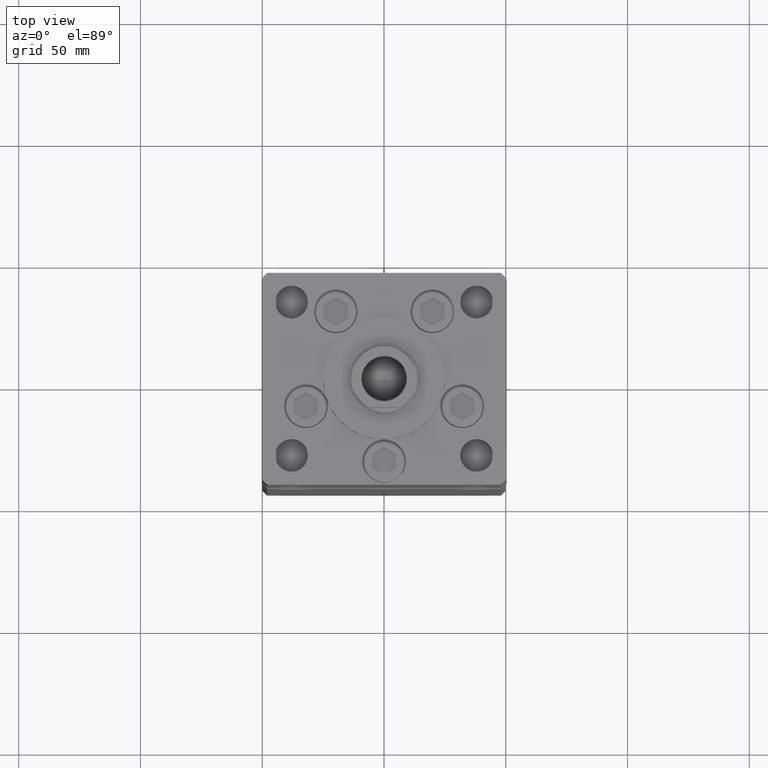
[diagram: clean part render]
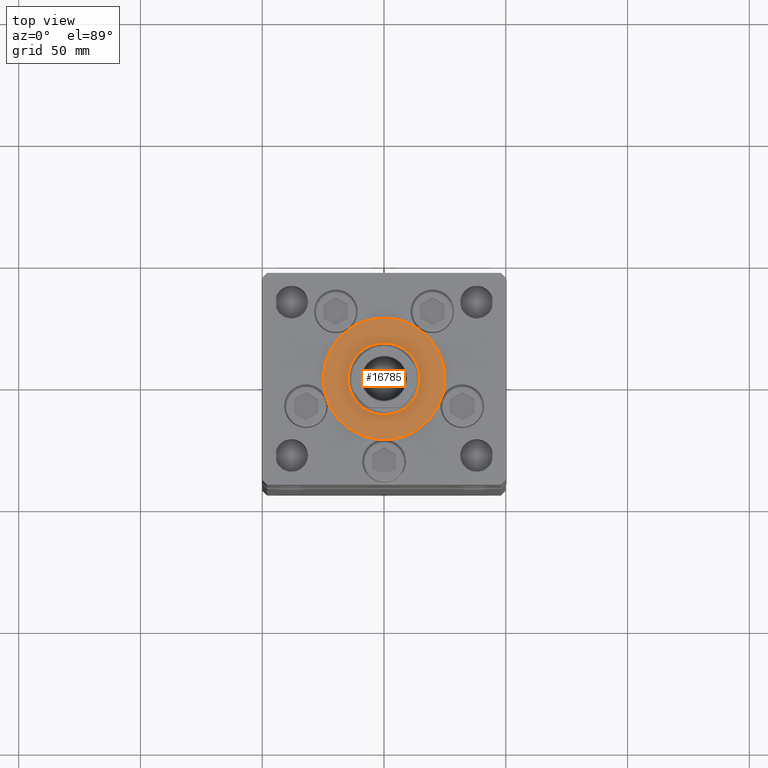
[diagram: same view with one face highlighted and labeled with its STEP entity id]
A machine part, top view. The second image highlights one B-rep face of the part: STEP entity #16785.
In plain terms, the highlighted planar face has unit normal (0, 0, 1).
Its self-contained STEP definition (entity closure, byte-faithful):
#828 = DIRECTION ( 'NONE',  ( 0.000000000000000000, 0.000000000000000000, 1.000000000000000000 ) ) ;
#841 = AXIS2_PLACEMENT_3D ( 'NONE', #5889, #42766, #5365 ) ;
#1209 = AXIS2_PLACEMENT_3D ( 'NONE', #30062, #1270, #34343 ) ;
#1270 = DIRECTION ( 'NONE',  ( 0.000000000000000000, 0.000000000000000000, 1.000000000000000000 ) ) ;
#1738 = CARTESIAN_POINT ( 'NONE',  ( 0.000000000000000000, -6.938893903907228378E-15, 2.000000000000000000 ) ) ;
#1872 = AXIS2_PLACEMENT_3D ( 'NONE', #36699, #24602, #40474 ) ;
#5123 = CIRCLE ( 'NONE', #841, 14.75000000000000178 ) ;
#5285 = VERTEX_POINT ( 'NONE', #10973 ) ;
#5365 = DIRECTION ( 'NONE',  ( 1.000000000000000000, 0.000000000000000000, 0.000000000000000000 ) ) ;
#5889 = CARTESIAN_POINT ( 'NONE',  ( 0.000000000000000000, -6.938893903907228378E-15, 2.000000000000000000 ) ) ;
#10973 = CARTESIAN_POINT ( 'NONE',  ( 25.00000000000000000, -3.877276906038844941E-15, 2.000000000000000000 ) ) ;
#11851 = ORIENTED_EDGE ( 'NONE', *, *, #37892, .F. ) ;
#16785 = ADVANCED_FACE ( 'NONE', ( #28633, #45048 ), #40219, .T. ) ;
#18618 = CARTESIAN_POINT ( 'NONE',  ( 14.75000000000000178, -6.938893903907228378E-15, 2.000000000000000000 ) ) ;
#20470 = ORIENTED_EDGE ( 'NONE', *, *, #52862, .F. ) ;
#21953 = CIRCLE ( 'NONE', #28018, 14.75000000000000178 ) ;
#22580 = CARTESIAN_POINT ( 'NONE',  ( -25.00000000000000000, -6.938893903907228378E-15, 2.000000000000000000 ) ) ;
#24602 = DIRECTION ( 'NONE',  ( 0.000000000000000000, 0.000000000000000000, 1.000000000000000000 ) ) ;
#24658 = EDGE_CURVE ( 'NONE', #5285, #27731, #26130, .T. ) ;
#24777 = CIRCLE ( 'NONE', #25615, 25.00000000000000000 ) ;
#24879 = CARTESIAN_POINT ( 'NONE',  ( -14.75000000000000178, -5.132539875164881787E-15, 2.000000000000000000 ) ) ;
#25615 = AXIS2_PLACEMENT_3D ( 'NONE', #41988, #828, #34433 ) ;
#26130 = CIRCLE ( 'NONE', #1209, 25.00000000000000000 ) ;
#26482 = DIRECTION ( 'NONE',  ( 0.000000000000000000, 0.000000000000000000, 1.000000000000000000 ) ) ;
#27731 = VERTEX_POINT ( 'NONE', #22580 ) ;
#28018 = AXIS2_PLACEMENT_3D ( 'NONE', #1738, #26482, #47217 ) ;
#28633 = FACE_BOUND ( 'NONE', #31566, .T. ) ;
#30062 = CARTESIAN_POINT ( 'NONE',  ( 0.000000000000000000, -6.938893903907228378E-15, 2.000000000000000000 ) ) ;
#31566 = EDGE_LOOP ( 'NONE', ( #11851, #20470 ) ) ;
#34343 = DIRECTION ( 'NONE',  ( 1.000000000000000000, 0.000000000000000000, 0.000000000000000000 ) ) ;
#34433 = DIRECTION ( 'NONE',  ( 1.000000000000000000, 0.000000000000000000, 0.000000000000000000 ) ) ;
#36699 = CARTESIAN_POINT ( 'NONE',  ( 0.000000000000000000, -6.938893903907228378E-15, 2.000000000000000000 ) ) ;
#37892 = EDGE_CURVE ( 'NONE', #42196, #42797, #21953, .T. ) ;
#40219 = PLANE ( 'NONE',  #1872 ) ;
#40474 = DIRECTION ( 'NONE',  ( 1.000000000000000000, 0.000000000000000000, -0.000000000000000000 ) ) ;
#41790 = ORIENTED_EDGE ( 'NONE', *, *, #24658, .T. ) ;
#41988 = CARTESIAN_POINT ( 'NONE',  ( 0.000000000000000000, -6.938893903907228378E-15, 2.000000000000000000 ) ) ;
#42196 = VERTEX_POINT ( 'NONE', #18618 ) ;
#42766 = DIRECTION ( 'NONE',  ( 0.000000000000000000, 0.000000000000000000, 1.000000000000000000 ) ) ;
#42797 = VERTEX_POINT ( 'NONE', #24879 ) ;
#43234 = EDGE_LOOP ( 'NONE', ( #45916, #41790 ) ) ;
#45048 = FACE_OUTER_BOUND ( 'NONE', #43234, .T. ) ;
#45916 = ORIENTED_EDGE ( 'NONE', *, *, #49110, .T. ) ;
#47217 = DIRECTION ( 'NONE',  ( 1.000000000000000000, 0.000000000000000000, 0.000000000000000000 ) ) ;
#49110 = EDGE_CURVE ( 'NONE', #27731, #5285, #24777, .T. ) ;
#52862 = EDGE_CURVE ( 'NONE', #42797, #42196, #5123, .T. ) ;